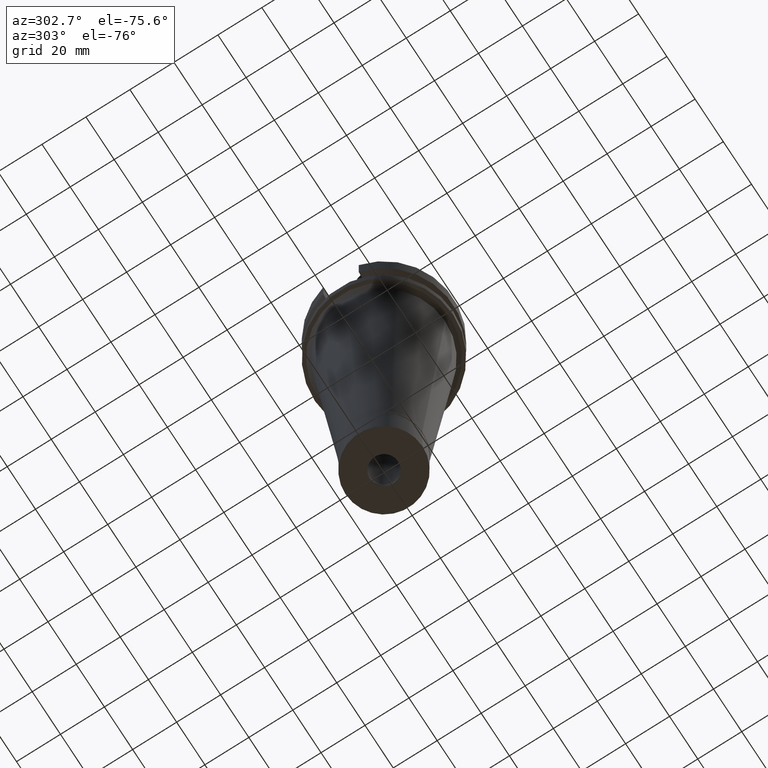
[diagram: clean part render]
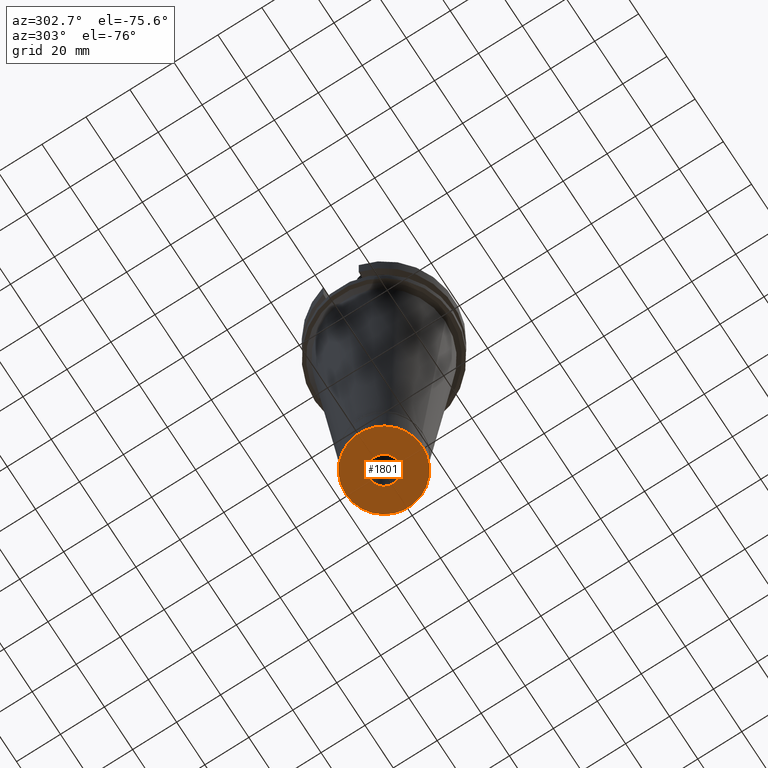
[diagram: same view with one face highlighted and labeled with its STEP entity id]
A machine part, auxiliary view. The second image highlights one B-rep face of the part: STEP entity #1801.
In plain terms, the highlighted planar face has unit normal (0, 0, -1).
Its self-contained STEP definition (entity closure, byte-faithful):
#86 = CIRCLE ( 'NONE', #2922, 17.50000000000000000 ) ;
#106 = DIRECTION ( 'NONE',  ( 0.0000000000000000000, 1.000000000000000000, 0.0000000000000000000 ) ) ;
#116 = CARTESIAN_POINT ( 'NONE',  ( 0.0000000000000000000, 6.349999999998999556, -22.50000000000000000 ) ) ;
#210 = ORIENTED_EDGE ( 'NONE', *, *, #2701, .F. ) ;
#284 = FACE_BOUND ( 'NONE', #685, .T. ) ;
#491 = AXIS2_PLACEMENT_3D ( 'NONE', #2815, #2119, #1850 ) ;
#538 = CARTESIAN_POINT ( 'NONE',  ( 0.0000000000000000000, 0.0000000000000000000, -22.50000000000000000 ) ) ;
#586 = AXIS2_PLACEMENT_3D ( 'NONE', #2931, #2394, #2168 ) ;
#685 = EDGE_LOOP ( 'NONE', ( #873, #1585 ) ) ;
#735 = AXIS2_PLACEMENT_3D ( 'NONE', #815, #2759, #106 ) ;
#809 = ORIENTED_EDGE ( 'NONE', *, *, #2857, .F. ) ;
#815 = CARTESIAN_POINT ( 'NONE',  ( 0.0000000000000000000, 0.0000000000000000000, -22.50000000000000000 ) ) ;
#873 = ORIENTED_EDGE ( 'NONE', *, *, #1847, .F. ) ;
#997 = CIRCLE ( 'NONE', #491, 6.349999999998999556 ) ;
#1226 = VERTEX_POINT ( 'NONE', #1536 ) ;
#1344 = DIRECTION ( 'NONE',  ( 0.0000000000000000000, -1.000000000000000000, 0.0000000000000000000 ) ) ;
#1471 = DIRECTION ( 'NONE',  ( 0.0000000000000000000, 0.0000000000000000000, 1.000000000000000000 ) ) ;
#1536 = CARTESIAN_POINT ( 'NONE',  ( 0.0000000000000000000, -17.50000000000000000, -22.50000000000000000 ) ) ;
#1585 = ORIENTED_EDGE ( 'NONE', *, *, #3108, .F. ) ;
#1606 = CIRCLE ( 'NONE', #2306, 17.50000000000000000 ) ;
#1710 = PLANE ( 'NONE',  #586 ) ;
#1743 = DIRECTION ( 'NONE',  ( 0.0000000000000000000, 0.0000000000000000000, 1.000000000000000000 ) ) ;
#1801 = ADVANCED_FACE ( 'NONE', ( #2190, #284 ), #1710, .T. ) ;
#1847 = EDGE_CURVE ( 'NONE', #2531, #2751, #3124, .T. ) ;
#1850 = DIRECTION ( 'NONE',  ( 0.0000000000000000000, -1.000000000000000000, 0.0000000000000000000 ) ) ;
#2105 = VERTEX_POINT ( 'NONE', #2365 ) ;
#2119 = DIRECTION ( 'NONE',  ( 0.0000000000000000000, 0.0000000000000000000, -1.000000000000000000 ) ) ;
#2168 = DIRECTION ( 'NONE',  ( 0.0000000000000000000, -1.000000000000000000, 0.0000000000000000000 ) ) ;
#2181 = DIRECTION ( 'NONE',  ( 0.0000000000000000000, 1.000000000000000000, 0.0000000000000000000 ) ) ;
#2190 = FACE_OUTER_BOUND ( 'NONE', #2887, .T. ) ;
#2306 = AXIS2_PLACEMENT_3D ( 'NONE', #2484, #1743, #1344 ) ;
#2365 = CARTESIAN_POINT ( 'NONE',  ( 0.0000000000000000000, 17.50000000000000000, -22.50000000000000000 ) ) ;
#2394 = DIRECTION ( 'NONE',  ( 0.0000000000000000000, 0.0000000000000000000, -1.000000000000000000 ) ) ;
#2484 = CARTESIAN_POINT ( 'NONE',  ( 0.0000000000000000000, 0.0000000000000000000, -22.50000000000000000 ) ) ;
#2531 = VERTEX_POINT ( 'NONE', #116 ) ;
#2537 = CARTESIAN_POINT ( 'NONE',  ( 0.0000000000000000000, -6.349999999998999556, -22.50000000000000000 ) ) ;
#2701 = EDGE_CURVE ( 'NONE', #1226, #2105, #1606, .T. ) ;
#2751 = VERTEX_POINT ( 'NONE', #2537 ) ;
#2759 = DIRECTION ( 'NONE',  ( 0.0000000000000000000, 0.0000000000000000000, -1.000000000000000000 ) ) ;
#2815 = CARTESIAN_POINT ( 'NONE',  ( 0.0000000000000000000, 0.0000000000000000000, -22.50000000000000000 ) ) ;
#2857 = EDGE_CURVE ( 'NONE', #2105, #1226, #86, .T. ) ;
#2887 = EDGE_LOOP ( 'NONE', ( #809, #210 ) ) ;
#2922 = AXIS2_PLACEMENT_3D ( 'NONE', #538, #1471, #2181 ) ;
#2931 = CARTESIAN_POINT ( 'NONE',  ( 0.0000000000000000000, 0.0000000000000000000, -22.50000000000000000 ) ) ;
#3108 = EDGE_CURVE ( 'NONE', #2751, #2531, #997, .T. ) ;
#3124 = CIRCLE ( 'NONE', #735, 6.349999999998999556 ) ;